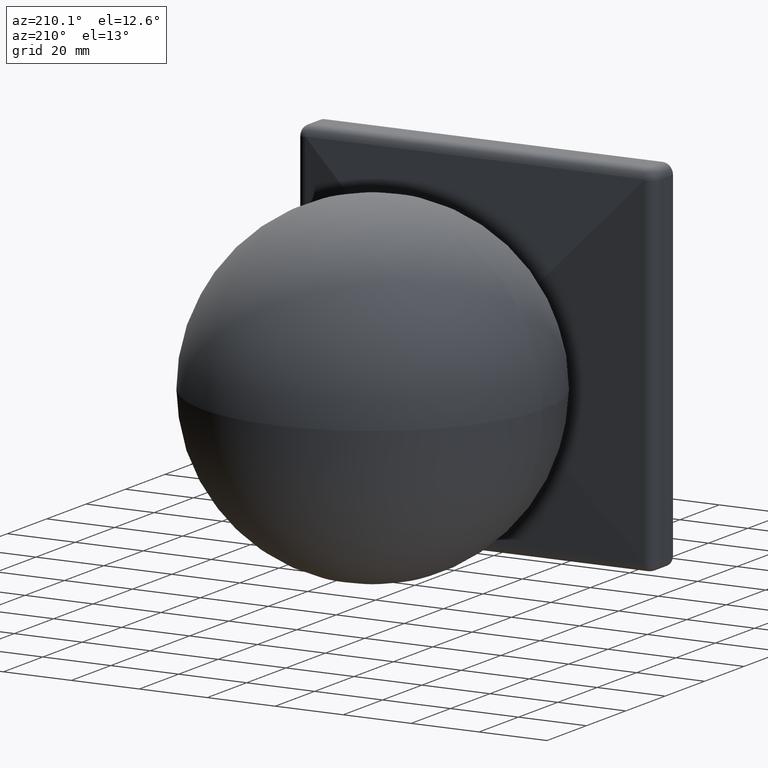
[diagram: clean part render]
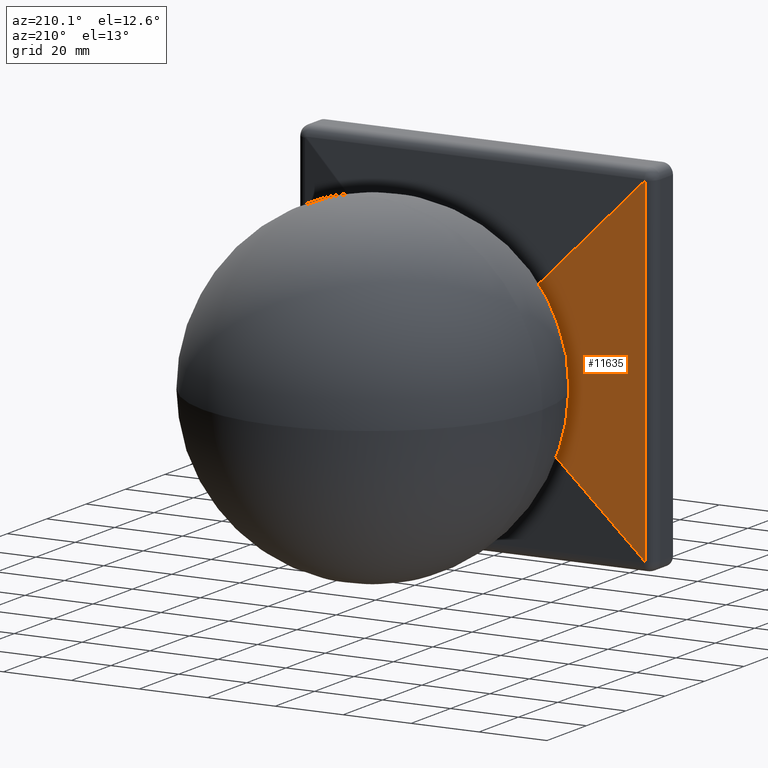
[diagram: same view with one face highlighted and labeled with its STEP entity id]
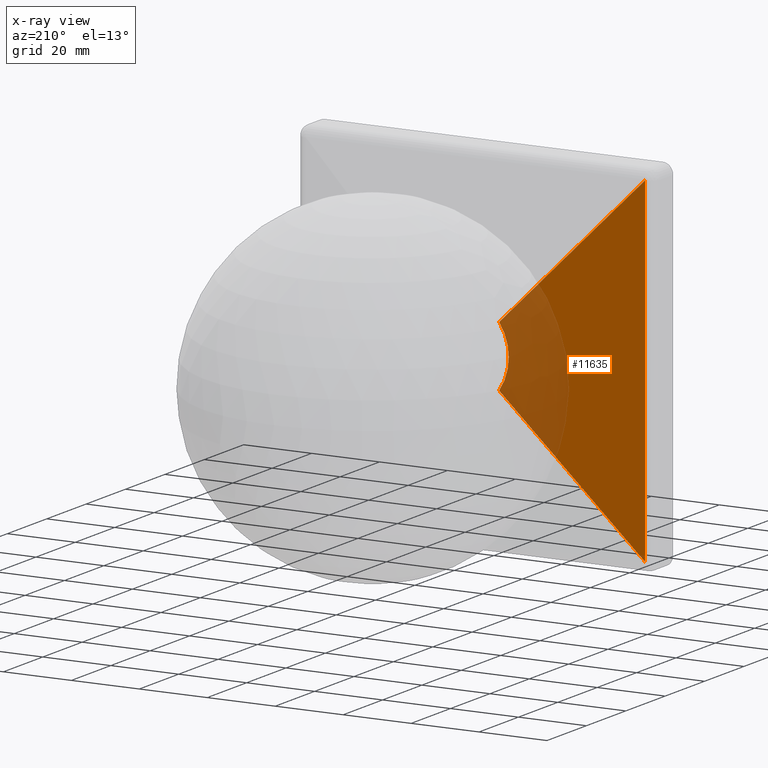
[diagram: x-ray of the same camera — body ghosted, the highlighted face saturated]
A machine part, auxiliary view. The second image highlights one B-rep face of the part: STEP entity #11635.
The next image is the same camera in x-ray: the body ghosted, the highlighted face saturated — about 24% of this face is hidden behind the body in this view.
In plain terms, the highlighted planar face has unit normal (-0.0901, 0.9959, 0).
Its self-contained STEP definition (entity closure, byte-faithful):
#86 = DIRECTION ( 'NONE',  ( 0.7056648853119992200, 0.06382898460108528400, -0.7056648853119994500 ) ) ;
#267 = CARTESIAN_POINT ( 'NONE',  ( -9.217887574740501600, 13.17846864188601300, -8.947634093226355400 ) ) ;
#851 = CIRCLE ( 'NONE', #14987, 16.22386729345960500 ) ;
#1521 = EDGE_CURVE ( 'NONE', #4185, #4596, #3571, .T. ) ;
#1569 = FACE_OUTER_BOUND ( 'NONE', #11482, .T. ) ;
#1732 = VECTOR ( 'NONE', #13721, 1000.000000000000000 ) ;
#2293 = DIRECTION ( 'NONE',  ( -0.9959341263205832000, -0.09008449383804263700, 2.664535259100376100E-015 ) ) ;
#2578 = DIRECTION ( 'NONE',  ( -0.9959341263205833100, -0.09008449383804260900, 0.0000000000000000000 ) ) ;
#2745 = EDGE_CURVE ( 'NONE', #4442, #4185, #10706, .T. ) ;
#3377 = EDGE_CURVE ( 'NONE', #8201, #4442, #11195, .T. ) ;
#3463 = CARTESIAN_POINT ( 'NONE',  ( -9.217887574740132100, 13.17846864188603100, 8.947634093226003700 ) ) ;
#3571 = LINE ( 'NONE', #10649, #7707 ) ;
#3876 = AXIS2_PLACEMENT_3D ( 'NONE', #15960, #13181, #2578 ) ;
#4017 = VERTEX_POINT ( 'NONE', #11973 ) ;
#4185 = VERTEX_POINT ( 'NONE', #5621 ) ;
#4442 = VERTEX_POINT ( 'NONE', #15927 ) ;
#4596 = VERTEX_POINT ( 'NONE', #3463 ) ;
#4722 = EDGE_CURVE ( 'NONE', #4596, #4017, #851, .T. ) ;
#5612 = ORIENTED_EDGE ( 'NONE', *, *, #4722, .T. ) ;
#5621 = CARTESIAN_POINT ( 'NONE',  ( -50.02025348151415300, 9.487802378961751200, 49.75000000000002800 ) ) ;
#6243 = DIRECTION ( 'NONE',  ( -0.9959341263205832000, -0.09008449383804263700, 0.0000000000000000000 ) ) ;
#6455 = CARTESIAN_POINT ( 'NONE',  ( -27.03325866220974700, 11.56702804100938300, -26.76300518069560000 ) ) ;
#6815 = VECTOR ( 'NONE', #14456, 1000.000000000000000 ) ;
#7208 = EDGE_CURVE ( 'NONE', #4017, #8201, #11258, .T. ) ;
#7707 = VECTOR ( 'NONE', #86, 1000.000000000000000 ) ;
#8201 = VERTEX_POINT ( 'NONE', #267 ) ;
#10649 = CARTESIAN_POINT ( 'NONE',  ( -0.4048296971095452500, 13.97562965594306700, 0.1345762155954138800 ) ) ;
#10706 = LINE ( 'NONE', #12344, #1732 ) ;
#11195 = LINE ( 'NONE', #6455, #6815 ) ;
#11258 = CIRCLE ( 'NONE', #16981, 16.22386729345960500 ) ;
#11439 = CARTESIAN_POINT ( 'NONE',  ( 4.260516712599830700, 14.39762078847959400, 0.0000000000000000000 ) ) ;
#11482 = EDGE_LOOP ( 'NONE', ( #13690, #5612, #16806, #16383, #17110 ) ) ;
#11635 = ADVANCED_FACE ( 'NONE', ( #1569 ), #17250, .T. ) ;
#11973 = CARTESIAN_POINT ( 'NONE',  ( -11.89738638585294900, 12.93610191525271200, 0.0000000000000000000 ) ) ;
#12344 = CARTESIAN_POINT ( 'NONE',  ( -50.02025348151415300, 9.487802378961751200, -52.74999999999997900 ) ) ;
#12965 = DIRECTION ( 'NONE',  ( 0.09008449383804260900, -0.9959341263205833100, -0.0000000000000000000 ) ) ;
#13181 = DIRECTION ( 'NONE',  ( -0.09008449383804260900, 0.9959341263205833100, 0.0000000000000000000 ) ) ;
#13690 = ORIENTED_EDGE ( 'NONE', *, *, #1521, .T. ) ;
#13721 = DIRECTION ( 'NONE',  ( -0.0000000000000000000, -0.0000000000000000000, 1.000000000000000000 ) ) ;
#14456 = DIRECTION ( 'NONE',  ( -0.7056648853119993300, -0.06382898460108529800, -0.7056648853119993300 ) ) ;
#14987 = AXIS2_PLACEMENT_3D ( 'NONE', #17099, #12965, #2293 ) ;
#15663 = DIRECTION ( 'NONE',  ( 0.09008449383804260900, -0.9959341263205833100, -0.0000000000000000000 ) ) ;
#15927 = CARTESIAN_POINT ( 'NONE',  ( -50.02025348151415300, 9.487802378961751200, -49.75000000000000700 ) ) ;
#15960 = CARTESIAN_POINT ( 'NONE',  ( -1.257153919835980000, 13.89853500263112800, -52.74999999999997900 ) ) ;
#16383 = ORIENTED_EDGE ( 'NONE', *, *, #3377, .T. ) ;
#16806 = ORIENTED_EDGE ( 'NONE', *, *, #7208, .T. ) ;
#16981 = AXIS2_PLACEMENT_3D ( 'NONE', #11439, #15663, #6243 ) ;
#17099 = CARTESIAN_POINT ( 'NONE',  ( 4.260516712599830700, 14.39762078847959400, 0.0000000000000000000 ) ) ;
#17110 = ORIENTED_EDGE ( 'NONE', *, *, #2745, .T. ) ;
#17250 = PLANE ( 'NONE',  #3876 ) ;